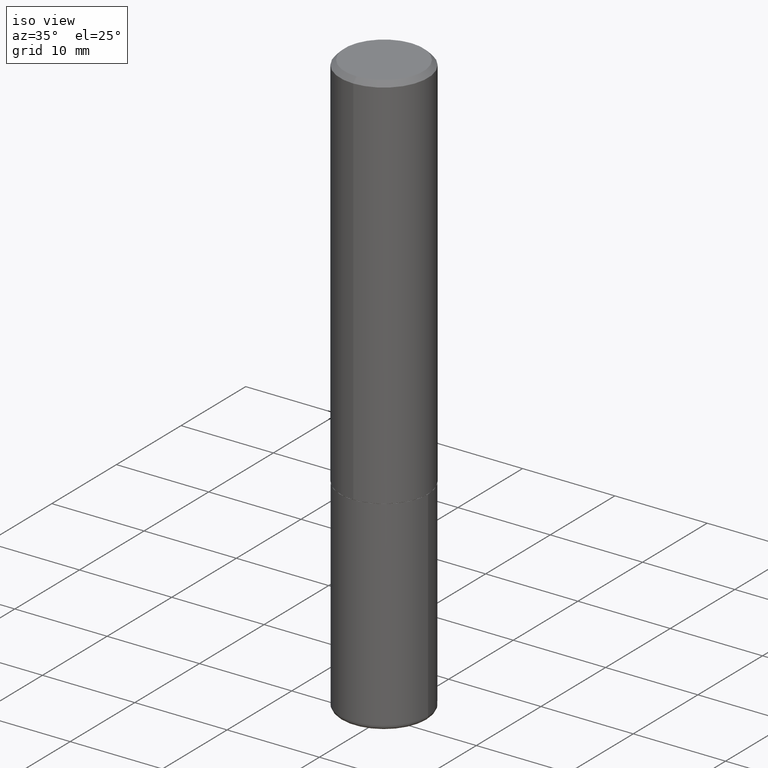
[diagram: clean part render]
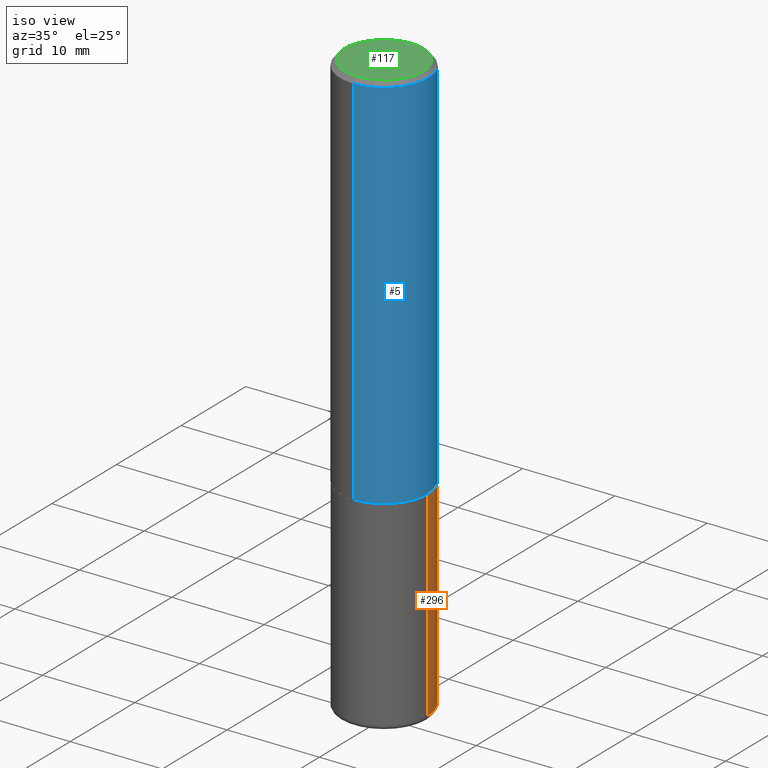
[diagram: same view with three faces highlighted in distinct colors, each labeled with its STEP entity id]
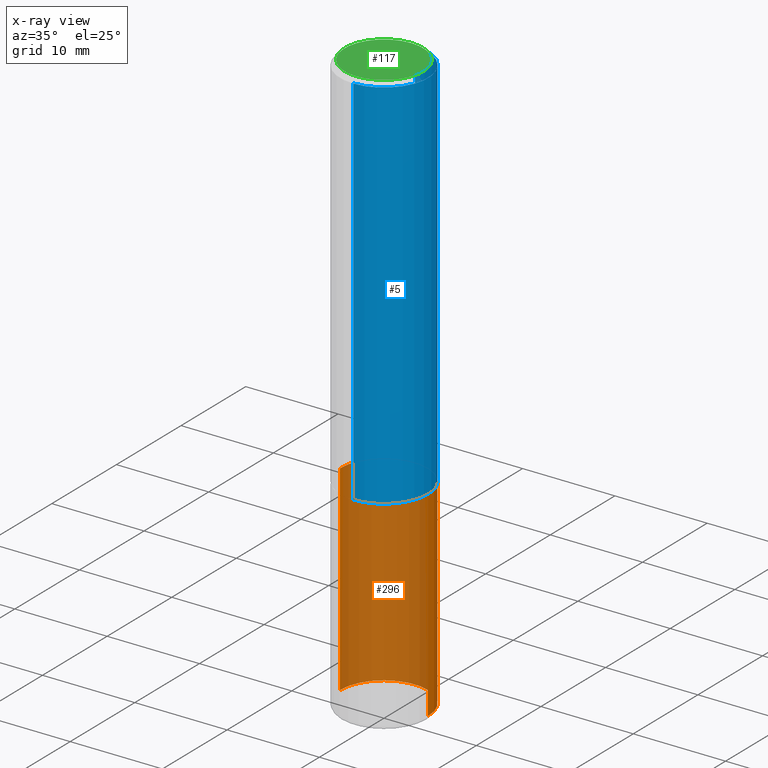
[diagram: x-ray of the same camera — body ghosted, the three highlighted faces saturated]
A machine part, iso view with three faces highlighted in distinct colors.
The next image is the same camera in x-ray (body ghosted, the three faces saturated) — at least one of them is partly hidden behind the body in this view.
Their STEP definitions:

[orange] entity #296 — the highlighted cylindrical surface (partial cylindrical patch) has radius 4.7625 mm, axis along (-0, 0, 1).
#11 = DIRECTION ( 'NONE',  ( -2.445468806185136877E-29, 3.491481338843145188E-15, 1.000000000000000000 ) ) ;
#14 = DIRECTION ( 'NONE',  ( 1.000000000000000000, -6.982962677686261189E-15, 0.000000000000000000 ) ) ;
#50 = ORIENTED_EDGE ( 'NONE', *, *, #407, .F. ) ;
#53 = CARTESIAN_POINT ( 'NONE',  ( 0.1875000000000000278, -6.982962677686288010E-15, -1.625000000000000222 ) ) ;
#54 = DIRECTION ( 'NONE',  ( 1.000000000000000000, -6.982962677686265922E-15, 4.876176775795935793E-29 ) ) ;
#67 = VERTEX_POINT ( 'NONE', #53 ) ;
#73 = EDGE_CURVE ( 'NONE', #321, #265, #373, .T. ) ;
#80 = DIRECTION ( 'NONE',  ( -2.445468806185136597E-29, 3.491481338843145583E-15, 1.000000000000000000 ) ) ;
#84 = ORIENTED_EDGE ( 'NONE', *, *, #73, .T. ) ;
#98 = DIRECTION ( 'NONE',  ( 1.000000000000000000, -6.982962677686266711E-15, 0.000000000000000000 ) ) ;
#108 = VECTOR ( 'NONE', #358, 39.37007874015748143 ) ;
#111 = DIRECTION ( 'NONE',  ( -2.445468806185136597E-29, 3.491481338843145583E-15, 1.000000000000000000 ) ) ;
#121 = CIRCLE ( 'NONE', #383, 0.1875000000000000278 ) ;
#129 = CARTESIAN_POINT ( 'NONE',  ( 0.1874999999999999722, -9.968179222397176653E-15, -2.480000000000000426 ) ) ;
#137 = CARTESIAN_POINT ( 'NONE',  ( 3.973886810050848091E-29, -5.673657175620113002E-15, -1.625000000000000222 ) ) ;
#139 = EDGE_LOOP ( 'NONE', ( #205, #84, #50, #237 ) ) ;
#150 = FACE_OUTER_BOUND ( 'NONE', #139, .T. ) ;
#157 = LINE ( 'NONE', #380, #108 ) ;
#165 = VERTEX_POINT ( 'NONE', #129 ) ;
#183 = EDGE_CURVE ( 'NONE', #165, #67, #157, .T. ) ;
#205 = ORIENTED_EDGE ( 'NONE', *, *, #242, .T. ) ;
#237 = ORIENTED_EDGE ( 'NONE', *, *, #183, .F. ) ;
#242 = EDGE_CURVE ( 'NONE', #165, #321, #360, .T. ) ;
#246 = AXIS2_PLACEMENT_3D ( 'NONE', #405, #111, #14 ) ;
#265 = VERTEX_POINT ( 'NONE', #357 ) ;
#268 = DIRECTION ( 'NONE',  ( -2.445468806185136597E-29, 3.491481338843145583E-15, 1.000000000000000000 ) ) ;
#279 = CARTESIAN_POINT ( 'NONE',  ( 0.000000000000000000, 0.000000000000000000, 0.000000000000000000 ) ) ;
#281 = VECTOR ( 'NONE', #11, 39.37007874015748143 ) ;
#283 = CARTESIAN_POINT ( 'NONE',  ( -0.1875000000000000278, 1.332267629550188046E-15, -9.223003294227947991E-30 ) ) ;
#296 = ADVANCED_FACE ( 'NONE', ( #150 ), #372, .T. ) ;
#309 = AXIS2_PLACEMENT_3D ( 'NONE', #279, #80, #54 ) ;
#320 = CARTESIAN_POINT ( 'NONE',  ( -0.1874999999999999722, -7.326606090780813796E-15, -2.480000000000000426 ) ) ;
#321 = VERTEX_POINT ( 'NONE', #320 ) ;
#357 = CARTESIAN_POINT ( 'NONE',  ( -0.1875000000000000278, -5.833997818425370658E-15, -1.625000000000000222 ) ) ;
#358 = DIRECTION ( 'NONE',  ( -2.445468806185136877E-29, 3.491481338843145188E-15, 1.000000000000000000 ) ) ;
#360 = CIRCLE ( 'NONE', #246, 0.1875000000000000278 ) ;
#372 = CYLINDRICAL_SURFACE ( 'NONE', #309, 0.1875000000000000278 ) ;
#373 = LINE ( 'NONE', #283, #281 ) ;
#380 = CARTESIAN_POINT ( 'NONE',  ( 0.1875000000000000278, -1.309305502066175008E-15, 9.142831454617381013E-30 ) ) ;
#383 = AXIS2_PLACEMENT_3D ( 'NONE', #137, #268, #98 ) ;
#405 = CARTESIAN_POINT ( 'NONE',  ( 6.064762639339139522E-29, -8.658873720331001644E-15, -2.480000000000000426 ) ) ;
#407 = EDGE_CURVE ( 'NONE', #67, #265, #121, .T. ) ;

[blue] entity #5 — the highlighted cylindrical surface (partial cylindrical patch) has radius 4.7625 mm, axis along (-0, 0, 1).
#2 = AXIS2_PLACEMENT_3D ( 'NONE', #81, #337, #115 ) ;
#5 = ADVANCED_FACE ( 'NONE', ( #402 ), #51, .T. ) ;
#17 = CARTESIAN_POINT ( 'NONE',  ( -1.309305502066136748E-15, -0.1875000000000058842, -1.623999999999999666 ) ) ;
#22 = VERTEX_POINT ( 'NONE', #152 ) ;
#24 = VERTEX_POINT ( 'NONE', #69 ) ;
#39 = CARTESIAN_POINT ( 'NONE',  ( 3.970274765435149780E-29, -5.671836297237862859E-15, -1.624000000000000110 ) ) ;
#51 = CYLINDRICAL_SURFACE ( 'NONE', #2, 0.1875000000000001110 ) ;
#57 = VECTOR ( 'NONE', #161, 39.37007874015748143 ) ;
#69 = CARTESIAN_POINT ( 'NONE',  ( 1.332267629550208753E-15, 0.1874999999999945599, -1.624000000000000776 ) ) ;
#81 = CARTESIAN_POINT ( 'NONE',  ( 0.000000000000000000, 0.000000000000000000, 0.000000000000000000 ) ) ;
#115 = DIRECTION ( 'NONE',  ( -6.982962677686266711E-15, -1.000000000000000000, 3.492510035244989451E-15 ) ) ;
#152 = CARTESIAN_POINT ( 'NONE',  ( -1.286343374582161576E-15, -0.1875000000000000833, -0.01999999999999938979 ) ) ;
#161 = DIRECTION ( 'NONE',  ( -2.444750471327062583E-29, 3.492510035244989057E-15, 1.000000000000000000 ) ) ;
#168 = EDGE_CURVE ( 'NONE', #24, #362, #194, .T. ) ;
#194 = LINE ( 'NONE', #415, #57 ) ;
#199 = AXIS2_PLACEMENT_3D ( 'NONE', #39, #388, #270 ) ;
#222 = LINE ( 'NONE', #249, #406 ) ;
#227 = CIRCLE ( 'NONE', #199, 0.1875000000000002220 ) ;
#249 = CARTESIAN_POINT ( 'NONE',  ( -1.309305502066175797E-15, -0.1875000000000001110, 6.548456316084358919E-16 ) ) ;
#250 = EDGE_CURVE ( 'NONE', #22, #362, #300, .T. ) ;
#258 = ORIENTED_EDGE ( 'NONE', *, *, #280, .F. ) ;
#267 = EDGE_LOOP ( 'NONE', ( #306, #312, #317, #258 ) ) ;
#270 = DIRECTION ( 'NONE',  ( -6.982962677686265922E-15, -1.000000000000000000, 2.913971193241877216E-15 ) ) ;
#280 = EDGE_CURVE ( 'NONE', #314, #22, #222, .T. ) ;
#294 = CARTESIAN_POINT ( 'NONE',  ( 4.889500942654134974E-31, -6.985020070489991672E-17, -0.02000000000000004205 ) ) ;
#300 = CIRCLE ( 'NONE', #346, 0.1875000000000000278 ) ;
#306 = ORIENTED_EDGE ( 'NONE', *, *, #381, .T. ) ;
#312 = ORIENTED_EDGE ( 'NONE', *, *, #168, .T. ) ;
#314 = VERTEX_POINT ( 'NONE', #17 ) ;
#317 = ORIENTED_EDGE ( 'NONE', *, *, #250, .F. ) ;
#337 = DIRECTION ( 'NONE',  ( -2.444750471327062302E-29, 3.492510035244989057E-15, 1.000000000000000000 ) ) ;
#339 = DIRECTION ( 'NONE',  ( -2.444750471327062302E-29, 3.492510035244989057E-15, 1.000000000000000000 ) ) ;
#346 = AXIS2_PLACEMENT_3D ( 'NONE', #294, #339, #410 ) ;
#350 = DIRECTION ( 'NONE',  ( -2.444750471327062583E-29, 3.492510035244989057E-15, 1.000000000000000000 ) ) ;
#362 = VERTEX_POINT ( 'NONE', #409 ) ;
#381 = EDGE_CURVE ( 'NONE', #314, #24, #227, .T. ) ;
#388 = DIRECTION ( 'NONE',  ( -2.444750471327062302E-29, 3.492510035244989057E-15, 1.000000000000000000 ) ) ;
#402 = FACE_OUTER_BOUND ( 'NONE', #267, .T. ) ;
#406 = VECTOR ( 'NONE', #350, 39.37007874015748143 ) ;
#409 = CARTESIAN_POINT ( 'NONE',  ( 1.309305502066175600E-15, 0.1874999999999999445, -0.02000000000000069431 ) ) ;
#410 = DIRECTION ( 'NONE',  ( -6.982962677686265922E-15, -1.000000000000000000, 3.483106191921935160E-15 ) ) ;
#415 = CARTESIAN_POINT ( 'NONE',  ( 1.332267629550188440E-15, 0.1875000000000001110, -6.548456316084358919E-16 ) ) ;

[green] entity #117 — the highlighted planar face has unit normal (0, -0, -1).
#9 = CIRCLE ( 'NONE', #70, 0.1675000000000001210 ) ;
#25 = AXIS2_PLACEMENT_3D ( 'NONE', #107, #220, #408 ) ;
#31 = FACE_OUTER_BOUND ( 'NONE', #68, .T. ) ;
#48 = EDGE_CURVE ( 'NONE', #191, #77, #303, .T. ) ;
#60 = CARTESIAN_POINT ( 'NONE',  ( 2.500295033717015477E-45, -3.571859622789970961E-31, -1.022719931151011213E-16 ) ) ;
#68 = EDGE_LOOP ( 'NONE', ( #273, #240 ) ) ;
#70 = AXIS2_PLACEMENT_3D ( 'NONE', #60, #133, #96 ) ;
#77 = VERTEX_POINT ( 'NONE', #400 ) ;
#96 = DIRECTION ( 'NONE',  ( -6.982962677686265922E-15, -1.000000000000000000, 3.492510035244988662E-15 ) ) ;
#107 = CARTESIAN_POINT ( 'NONE',  ( 2.500295033717015477E-45, -3.571859622789970961E-31, -1.022719931151011213E-16 ) ) ;
#117 = ADVANCED_FACE ( 'NONE', ( #31 ), #197, .F. ) ;
#133 = DIRECTION ( 'NONE',  ( -2.444750471327062302E-29, 3.492510035244989057E-15, 1.000000000000000000 ) ) ;
#141 = EDGE_CURVE ( 'NONE', #77, #191, #9, .T. ) ;
#189 = CARTESIAN_POINT ( 'NONE',  ( 1.239475875289312893E-15, 0.1675000000000001210, -6.872674240186371088E-16 ) ) ;
#191 = VERTEX_POINT ( 'NONE', #189 ) ;
#197 = PLANE ( 'NONE',  #336 ) ;
#220 = DIRECTION ( 'NONE',  ( -2.444750471327062302E-29, 3.492510035244989057E-15, 1.000000000000000000 ) ) ;
#240 = ORIENTED_EDGE ( 'NONE', *, *, #141, .T. ) ;
#273 = ORIENTED_EDGE ( 'NONE', *, *, #48, .T. ) ;
#301 = CARTESIAN_POINT ( 'NONE',  ( 1.169646248512450384E-15, 0.1675000000000001210, -6.361314274610866591E-16 ) ) ;
#303 = CIRCLE ( 'NONE', #25, 0.1675000000000001210 ) ;
#336 = AXIS2_PLACEMENT_3D ( 'NONE', #301, #353, #386 ) ;
#353 = DIRECTION ( 'NONE',  ( 2.444750471327062022E-29, -3.492510035244989057E-15, -1.000000000000000000 ) ) ;
#386 = DIRECTION ( 'NONE',  ( 6.982962677686265922E-15, 1.000000000000000000, -3.492510035244989057E-15 ) ) ;
#400 = CARTESIAN_POINT ( 'NONE',  ( -1.217738394604446837E-15, -0.1675000000000001210, 4.827234377884349155E-16 ) ) ;
#408 = DIRECTION ( 'NONE',  ( -6.982962677686265922E-15, -1.000000000000000000, 3.492510035244988662E-15 ) ) ;